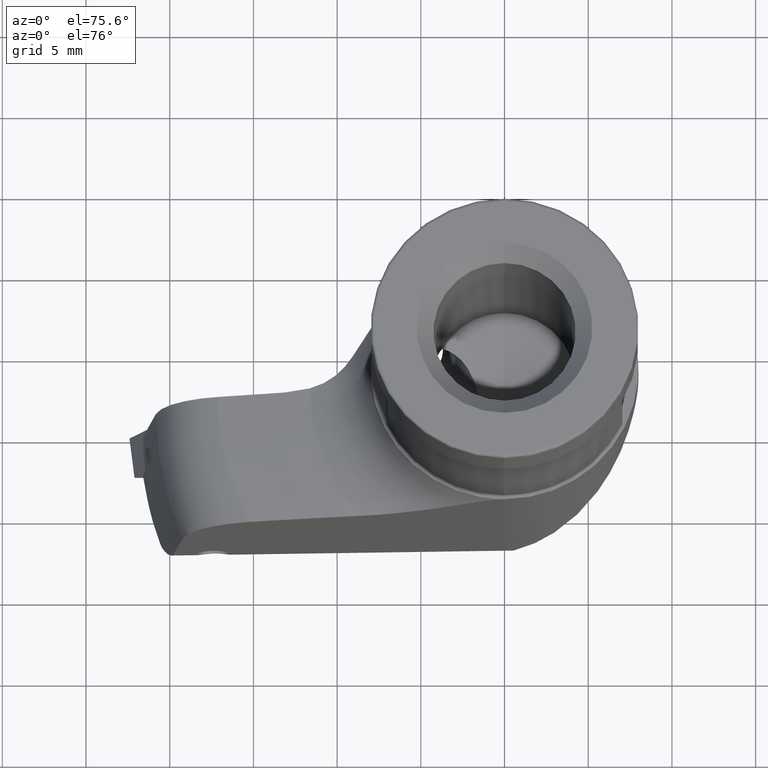
[diagram: clean part render]
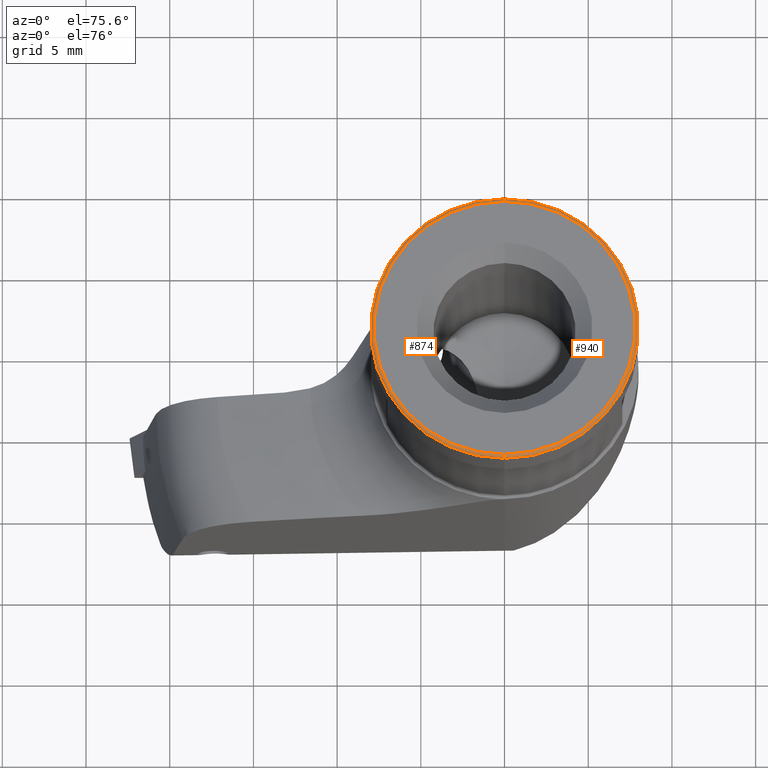
[diagram: same view with one multi-face feature highlighted, each face labeled with its STEP entity id]
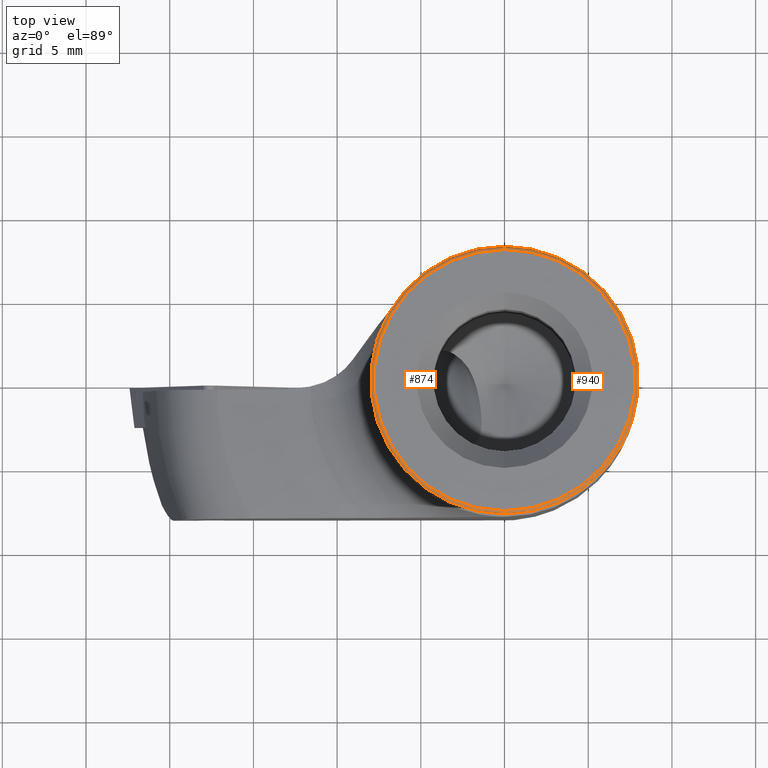
[diagram: same view with one multi-face feature highlighted, each face labeled with its STEP entity id]
A machine part, auxiliary view. The highlighted faces form ONE feature: a constant-radius fillet chain: 2 tangent blend faces with common blend radius 0.2 mm. The faces share edges in the B-rep.
A second angle (top view) of the same feature is appended — it is thin or edge-on in the first view.
Their STEP definitions:
[1] entity #874 (Torus):
#822=EDGE_CURVE('NONE',#1870,#996,#2184,.T.);
#836=EDGE_CURVE('NONE',#1198,#1494,#2198,.T.);
#874=ADVANCED_FACE('NONE',(#2239),#2240,.T.);
#882=EDGE_CURVE('NONE',#996,#1494,#2249,.T.);
#996=VERTEX_POINT('NONE',#2373);
#1172=EDGE_CURVE('NONE',#1198,#1870,#2570,.T.);
#1198=VERTEX_POINT('NONE',#2599);
#1494=VERTEX_POINT('NONE',#2921);
#1870=VERTEX_POINT('NONE',#3328);
#2184=CIRCLE('',#3798,0.2);
#2198=CIRCLE('',#3817,0.2);
#2239=FACE_OUTER_BOUND('',#3902,.T.);
#2240=TOROIDAL_SURFACE('',#3903,7.8,0.2);
#2249=CIRCLE('',#3917,7.8);
#2373=CARTESIAN_POINT('',(9.67470971326409E-016,7.8,-1.18481022830287E-031));
#2570=CIRCLE('',#5136,8.0);
#2599=CARTESIAN_POINT('',(-2.44929359829471E-017,-8.0,-0.2));
#2921=CARTESIAN_POINT('',(0.0,-7.8,0.0));
#3328=CARTESIAN_POINT('',(9.55224503334935E-016,8.0,-0.2));
#3798=AXIS2_PLACEMENT_3D('',#7746,#7747,#7748);
#3817=AXIS2_PLACEMENT_3D('',#7756,#7757,#7758);
#3902=EDGE_LOOP('',(#7797,#7798,#7799,#7800));
#3903=AXIS2_PLACEMENT_3D('',#7801,#7802,#7803);
#3917=AXIS2_PLACEMENT_3D('',#7814,#7815,#7816);
#5136=AXIS2_PLACEMENT_3D('',#8215,#8216,#8217);
#7746=CARTESIAN_POINT('',(9.30731567351989E-016,7.8,-0.2));
#7747=DIRECTION('',(1.0,-1.22464679914736E-016,-1.22464679914735E-016));
#7748=DIRECTION('',(-1.22464679914736E-016,-1.0,1.49975978266186E-032));
#7756=CARTESIAN_POINT('',(-2.44929359829471E-017,-7.8,-0.2));
#7757=DIRECTION('',(-1.0,0.0,1.22464679914735E-016));
#7758=DIRECTION('',(0.0,1.0,0.0));
#7797=ORIENTED_EDGE('',*,*,#822,.F.);
#7798=ORIENTED_EDGE('',*,*,#1172,.F.);
#7799=ORIENTED_EDGE('',*,*,#836,.T.);
#7800=ORIENTED_EDGE('',*,*,#882,.F.);
#7801=CARTESIAN_POINT('',(-2.44929359829471E-017,0.0,-0.2));
#7802=DIRECTION('',(1.22464679914735E-016,0.0,1.0));
#7803=DIRECTION('',(0.0,-1.0,0.0));
#7814=CARTESIAN_POINT('',(0.0,0.0,0.0));
#7815=DIRECTION('',(1.22464679914735E-016,-0.0,1.0));
#7816=DIRECTION('',(0.0,1.0,0.0));
#8215=CARTESIAN_POINT('',(-2.44929359829471E-017,0.0,-0.2));
#8216=DIRECTION('',(-1.22464679914735E-016,-0.0,-1.0));
#8217=DIRECTION('',(0.0,-1.0,0.0));
[2] entity #940 (Torus):
#822=EDGE_CURVE('NONE',#1870,#996,#2184,.T.);
#836=EDGE_CURVE('NONE',#1198,#1494,#2198,.T.);
#940=ADVANCED_FACE('NONE',(#2313),#2314,.T.);
#996=VERTEX_POINT('NONE',#2373);
#1198=VERTEX_POINT('NONE',#2599);
#1494=VERTEX_POINT('NONE',#2921);
#1632=EDGE_CURVE('NONE',#1494,#996,#3072,.T.);
#1836=EDGE_CURVE('NONE',#1870,#1198,#3291,.T.);
#1870=VERTEX_POINT('NONE',#3328);
#2184=CIRCLE('',#3798,0.2);
#2198=CIRCLE('',#3817,0.2);
#2313=FACE_OUTER_BOUND('',#4058,.T.);
#2314=TOROIDAL_SURFACE('',#4059,7.8,0.2);
#2373=CARTESIAN_POINT('',(9.67470971326409E-016,7.8,-1.18481022830287E-031));
#2599=CARTESIAN_POINT('',(-2.44929359829471E-017,-8.0,-0.2));
#2921=CARTESIAN_POINT('',(0.0,-7.8,0.0));
#3072=CIRCLE('',#6402,7.8);
#3291=CIRCLE('',#7200,8.0);
#3328=CARTESIAN_POINT('',(9.55224503334935E-016,8.0,-0.2));
#3798=AXIS2_PLACEMENT_3D('',#7746,#7747,#7748);
#3817=AXIS2_PLACEMENT_3D('',#7756,#7757,#7758);
#4058=EDGE_LOOP('',(#7904,#7905,#7906,#7907));
#4059=AXIS2_PLACEMENT_3D('',#7908,#7909,#7910);
#6402=AXIS2_PLACEMENT_3D('',#8791,#8792,#8793);
#7200=AXIS2_PLACEMENT_3D('',#9022,#9023,#9024);
#7746=CARTESIAN_POINT('',(9.30731567351989E-016,7.8,-0.2));
#7747=DIRECTION('',(1.0,-1.22464679914736E-016,-1.22464679914735E-016));
#7748=DIRECTION('',(-1.22464679914736E-016,-1.0,1.49975978266186E-032));
#7756=CARTESIAN_POINT('',(-2.44929359829471E-017,-7.8,-0.2));
#7757=DIRECTION('',(-1.0,0.0,1.22464679914735E-016));
#7758=DIRECTION('',(0.0,1.0,0.0));
#7904=ORIENTED_EDGE('',*,*,#1836,.F.);
#7905=ORIENTED_EDGE('',*,*,#822,.T.);
#7906=ORIENTED_EDGE('',*,*,#1632,.F.);
#7907=ORIENTED_EDGE('',*,*,#836,.F.);
#7908=CARTESIAN_POINT('',(-2.44929359829471E-017,0.0,-0.2));
#7909=DIRECTION('',(1.22464679914735E-016,0.0,1.0));
#7910=DIRECTION('',(0.0,-1.0,0.0));
#8791=CARTESIAN_POINT('',(0.0,0.0,0.0));
#8792=DIRECTION('',(1.22464679914735E-016,-0.0,1.0));
#8793=DIRECTION('',(0.0,1.0,0.0));
#9022=CARTESIAN_POINT('',(-2.44929359829471E-017,0.0,-0.2));
#9023=DIRECTION('',(-1.22464679914735E-016,-0.0,-1.0));
#9024=DIRECTION('',(0.0,-1.0,0.0));